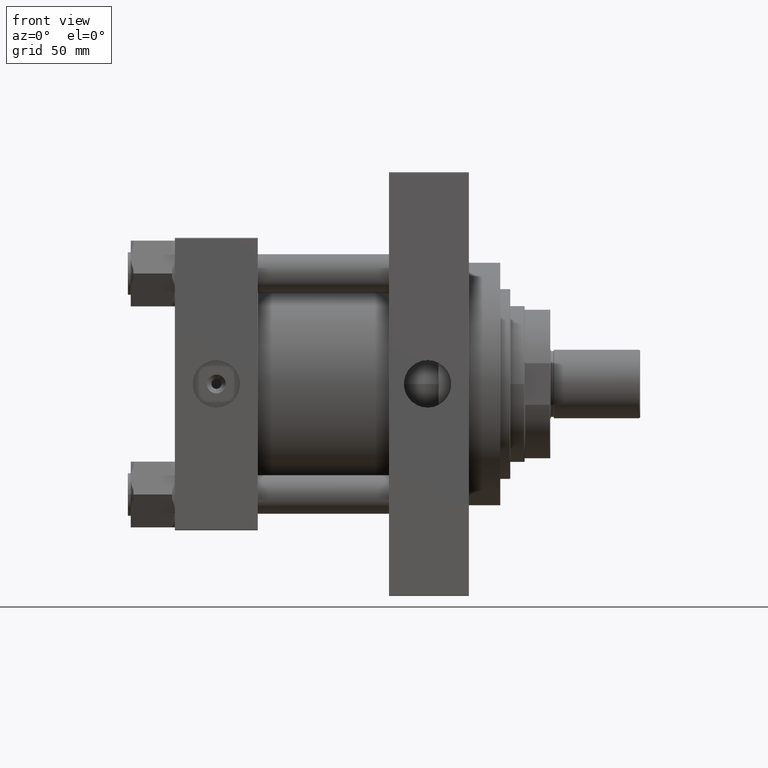
[diagram: clean part render]
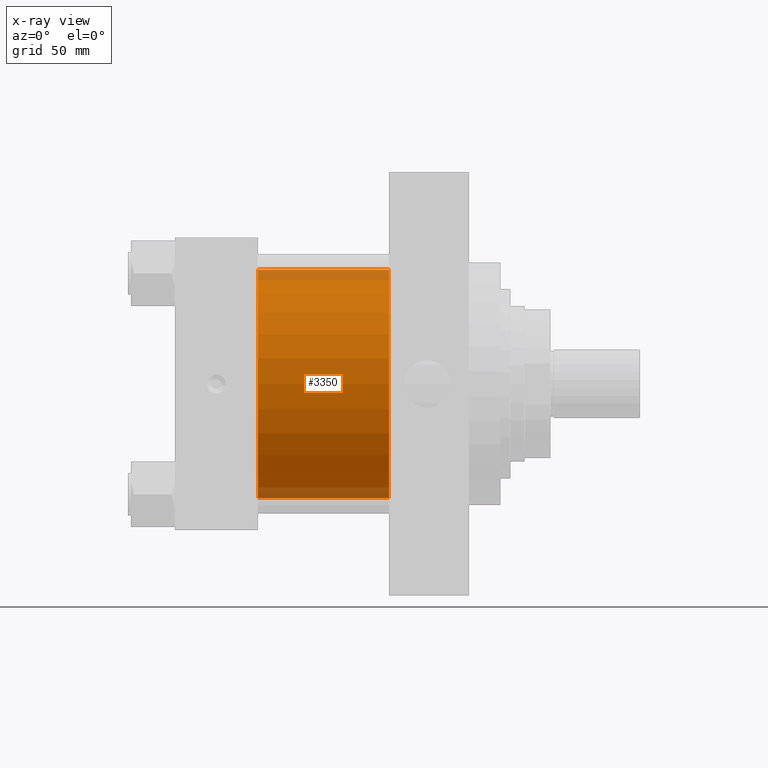
[diagram: x-ray — body ghosted, one internal face saturated and labeled with its STEP entity id]
A machine part, front view, then the same camera in x-ray: the body is ghosted and one INTERNAL B-rep face — a face not visible from any outside direction — is saturated and labeled: STEP entity #3350.
In plain terms, the highlighted cylindrical surface (partial cylindrical patch) has radius 80 mm, axis along (-1, -0, -0).
Its self-contained STEP definition (entity closure, byte-faithful):
#621 = DIRECTION ( 'NONE',  ( 1.000000000000000000, 0.000000000000000000, 0.000000000000000000 ) ) ;
#3350 = ADVANCED_FACE ( 'NONE', ( #11320 ), #26846, .F. ) ;
#3501 = EDGE_LOOP ( 'NONE', ( #27108, #29834, #41050, #34366 ) ) ;
#3515 = VERTEX_POINT ( 'NONE', #5964 ) ;
#3651 = DIRECTION ( 'NONE',  ( -1.000000000000000000, -0.000000000000000000, -0.000000000000000000 ) ) ;
#4426 = CARTESIAN_POINT ( 'NONE',  ( 150.0000000000000000, -2.602085213965210642E-15, 0.000000000000000000 ) ) ;
#5177 = AXIS2_PLACEMENT_3D ( 'NONE', #42370, #7502, #19192 ) ;
#5964 = CARTESIAN_POINT ( 'NONE',  ( 58.00000000000000000, 7.195089179213615410E-15, -80.00000000000000000 ) ) ;
#6776 = DIRECTION ( 'NONE',  ( -1.000000000000000000, -0.000000000000000000, -0.000000000000000000 ) ) ;
#7479 = LINE ( 'NONE', #38539, #12861 ) ;
#7502 = DIRECTION ( 'NONE',  ( -1.000000000000000000, -0.000000000000000000, -0.000000000000000000 ) ) ;
#11311 = DIRECTION ( 'NONE',  ( 0.000000000000000000, 0.000000000000000000, -1.000000000000000000 ) ) ;
#11320 = FACE_OUTER_BOUND ( 'NONE', #3501, .T. ) ;
#12787 = AXIS2_PLACEMENT_3D ( 'NONE', #4426, #621, #11311 ) ;
#12861 = VECTOR ( 'NONE', #3651, 1000.000000000000000 ) ;
#13471 = AXIS2_PLACEMENT_3D ( 'NONE', #17482, #14174, #45233 ) ;
#13485 = CARTESIAN_POINT ( 'NONE',  ( 150.0000000000000000, -2.602085213965210642E-15, 80.00000000000000000 ) ) ;
#14174 = DIRECTION ( 'NONE',  ( 1.000000000000000000, 0.000000000000000000, 0.000000000000000000 ) ) ;
#16394 = CARTESIAN_POINT ( 'NONE',  ( 58.00000000000000000, -2.602085213965210642E-15, 80.00000000000000000 ) ) ;
#16851 = CIRCLE ( 'NONE', #12787, 80.00000000000000000 ) ;
#17482 = CARTESIAN_POINT ( 'NONE',  ( 58.00000000000000000, -2.602085213965210642E-15, 0.000000000000000000 ) ) ;
#18283 = EDGE_CURVE ( 'NONE', #33467, #3515, #23034, .T. ) ;
#18466 = CARTESIAN_POINT ( 'NONE',  ( 150.0000000000000000, 7.195089179213615410E-15, -80.00000000000000000 ) ) ;
#19192 = DIRECTION ( 'NONE',  ( 0.000000000000000000, 0.000000000000000000, 1.000000000000000000 ) ) ;
#23034 = LINE ( 'NONE', #18466, #48791 ) ;
#26671 = VERTEX_POINT ( 'NONE', #13485 ) ;
#26846 = CYLINDRICAL_SURFACE ( 'NONE', #5177, 80.00000000000000000 ) ;
#27108 = ORIENTED_EDGE ( 'NONE', *, *, #40274, .T. ) ;
#28072 = CIRCLE ( 'NONE', #13471, 80.00000000000000000 ) ;
#29834 = ORIENTED_EDGE ( 'NONE', *, *, #18283, .T. ) ;
#33467 = VERTEX_POINT ( 'NONE', #38551 ) ;
#34366 = ORIENTED_EDGE ( 'NONE', *, *, #42449, .F. ) ;
#36007 = EDGE_CURVE ( 'NONE', #48521, #3515, #28072, .T. ) ;
#38539 = CARTESIAN_POINT ( 'NONE',  ( 150.0000000000000000, -2.602085213965210642E-15, 80.00000000000000000 ) ) ;
#38551 = CARTESIAN_POINT ( 'NONE',  ( 150.0000000000000000, 7.195089179213615410E-15, -80.00000000000000000 ) ) ;
#40274 = EDGE_CURVE ( 'NONE', #26671, #33467, #16851, .T. ) ;
#41050 = ORIENTED_EDGE ( 'NONE', *, *, #36007, .F. ) ;
#42370 = CARTESIAN_POINT ( 'NONE',  ( 150.0000000000000000, -2.602085213965210642E-15, 0.000000000000000000 ) ) ;
#42449 = EDGE_CURVE ( 'NONE', #26671, #48521, #7479, .T. ) ;
#45233 = DIRECTION ( 'NONE',  ( 0.000000000000000000, 0.000000000000000000, -1.000000000000000000 ) ) ;
#48521 = VERTEX_POINT ( 'NONE', #16394 ) ;
#48791 = VECTOR ( 'NONE', #6776, 1000.000000000000000 ) ;